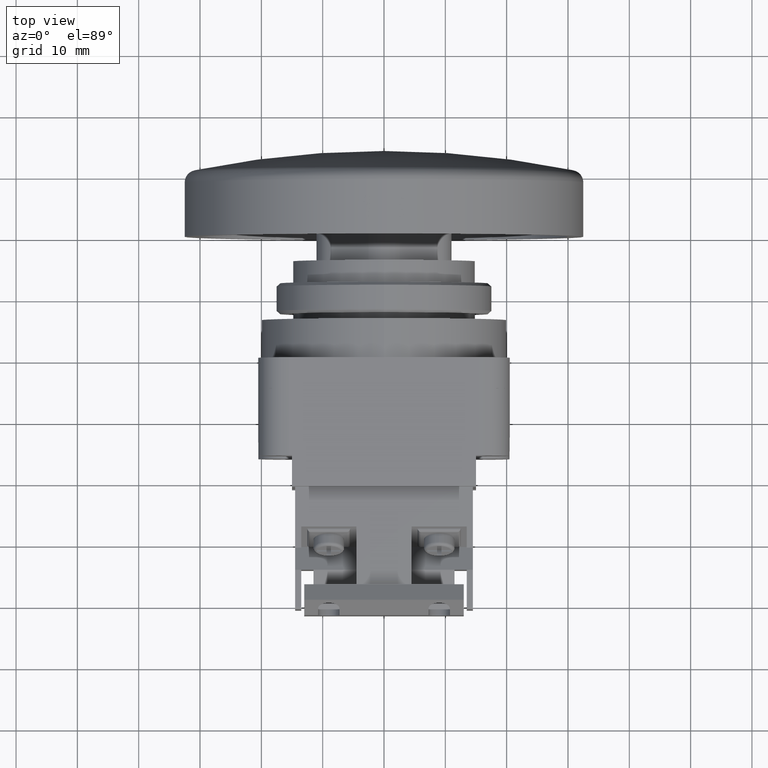
[diagram: clean part render]
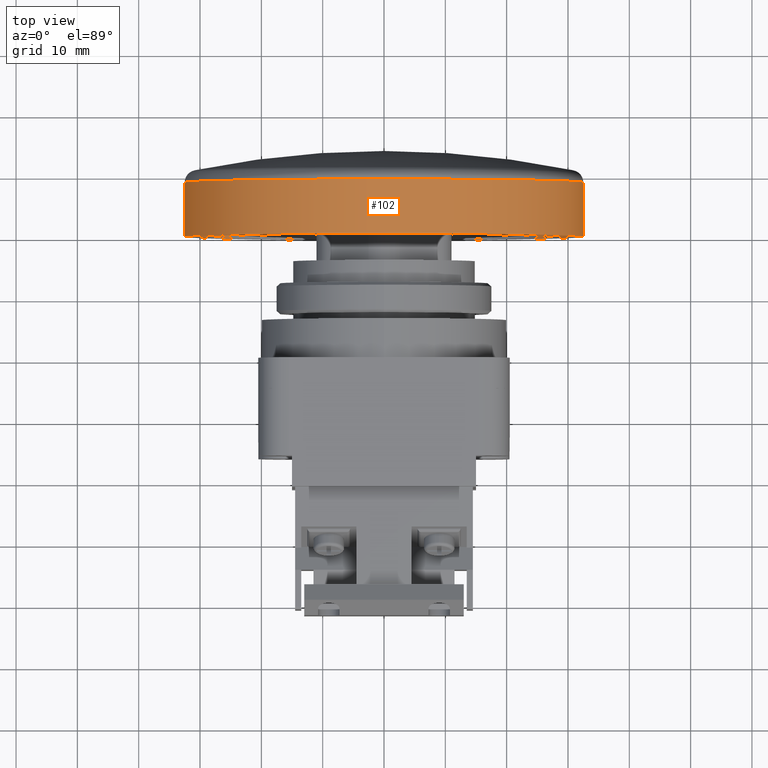
[diagram: same view with one face highlighted and labeled with its STEP entity id]
A machine part, top view. The second image highlights one B-rep face of the part: STEP entity #102.
In plain terms, the highlighted cylindrical surface (partial cylindrical patch) has radius 32.5 mm, axis along (-0, -1, -0).
Its self-contained STEP definition (entity closure, byte-faithful):
#86 = EDGE_LOOP ( 'NONE', ( #5056, #6912, #3997, #6746 ) ) ;
#102 = ADVANCED_FACE ( 'NONE', ( #4113 ), #3941, .T. ) ;
#126 = LINE ( 'NONE', #7249, #6251 ) ;
#245 = CARTESIAN_POINT ( 'NONE',  ( 3.844522298110762500E-015, 20.00000000000000400, 0.0000000000000000000 ) ) ;
#669 = VERTEX_POINT ( 'NONE', #7111 ) ;
#720 = LINE ( 'NONE', #5526, #6865 ) ;
#804 = EDGE_CURVE ( 'NONE', #4850, #3648, #126, .T. ) ;
#821 = CIRCLE ( 'NONE', #7286, 32.50000000000000700 ) ;
#847 = DIRECTION ( 'NONE',  ( 1.000000000000000000, -1.067522139062650300E-016, 0.0000000000000000000 ) ) ;
#1250 = DIRECTION ( 'NONE',  ( 1.000000000000000000, -1.067522139062650300E-016, 0.0000000000000000000 ) ) ;
#1977 = DIRECTION ( 'NONE',  ( -9.376883653928686100E-017, -1.000000000000000000, -0.0000000000000000000 ) ) ;
#3083 = EDGE_CURVE ( 'NONE', #4729, #3648, #821, .T. ) ;
#3256 = DIRECTION ( 'NONE',  ( -9.376883653928687400E-017, -1.000000000000000000, -0.0000000000000000000 ) ) ;
#3604 = DIRECTION ( 'NONE',  ( -9.376883653928686100E-017, -1.000000000000000000, -0.0000000000000000000 ) ) ;
#3648 = VERTEX_POINT ( 'NONE', #5706 ) ;
#3654 = DIRECTION ( 'NONE',  ( -9.376883653928686100E-017, -1.000000000000000000, -0.0000000000000000000 ) ) ;
#3941 = CYLINDRICAL_SURFACE ( 'NONE', #6312, 32.50000000000000700 ) ;
#3992 = EDGE_CURVE ( 'NONE', #669, #4850, #4970, .T. ) ;
#3997 = ORIENTED_EDGE ( 'NONE', *, *, #3083, .F. ) ;
#4113 = FACE_OUTER_BOUND ( 'NONE', #86, .T. ) ;
#4390 = DIRECTION ( 'NONE',  ( -9.376883653928686100E-017, -1.000000000000000000, -0.0000000000000000000 ) ) ;
#4729 = VERTEX_POINT ( 'NONE', #7018 ) ;
#4765 = AXIS2_PLACEMENT_3D ( 'NONE', #6828, #3256, #7428 ) ;
#4850 = VERTEX_POINT ( 'NONE', #6076 ) ;
#4970 = CIRCLE ( 'NONE', #4765, 32.50000000000000700 ) ;
#5056 = ORIENTED_EDGE ( 'NONE', *, *, #3992, .T. ) ;
#5394 = CARTESIAN_POINT ( 'NONE',  ( 0.0000000000000000000, -21.00000000000000400, 0.0000000000000000000 ) ) ;
#5526 = CARTESIAN_POINT ( 'NONE',  ( 32.50000000000000700, -21.00000000000000700, 0.0000000000000000000 ) ) ;
#5706 = CARTESIAN_POINT ( 'NONE',  ( -32.50000000000000000, 20.00000000000000700, 3.980102097228899400E-015 ) ) ;
#6076 = CARTESIAN_POINT ( 'NONE',  ( -32.50000000000000000, 28.88009160805166400, 3.980102097228899400E-015 ) ) ;
#6212 = EDGE_CURVE ( 'NONE', #669, #4729, #720, .T. ) ;
#6251 = VECTOR ( 'NONE', #3654, 1000.000000000000000 ) ;
#6312 = AXIS2_PLACEMENT_3D ( 'NONE', #5394, #3604, #1250 ) ;
#6746 = ORIENTED_EDGE ( 'NONE', *, *, #6212, .F. ) ;
#6828 = CARTESIAN_POINT ( 'NONE',  ( 4.677198156560051200E-015, 28.88009160805166100, 0.0000000000000000000 ) ) ;
#6865 = VECTOR ( 'NONE', #1977, 1000.000000000000000 ) ;
#6912 = ORIENTED_EDGE ( 'NONE', *, *, #804, .T. ) ;
#7018 = CARTESIAN_POINT ( 'NONE',  ( 32.50000000000001400, 20.00000000000000000, 0.0000000000000000000 ) ) ;
#7111 = CARTESIAN_POINT ( 'NONE',  ( 32.50000000000001400, 28.88009160805165700, 0.0000000000000000000 ) ) ;
#7249 = CARTESIAN_POINT ( 'NONE',  ( -32.50000000000000700, -21.00000000000000000, 3.980102097228899400E-015 ) ) ;
#7286 = AXIS2_PLACEMENT_3D ( 'NONE', #245, #4390, #847 ) ;
#7428 = DIRECTION ( 'NONE',  ( 1.000000000000000000, -1.067522139062650300E-016, 0.0000000000000000000 ) ) ;